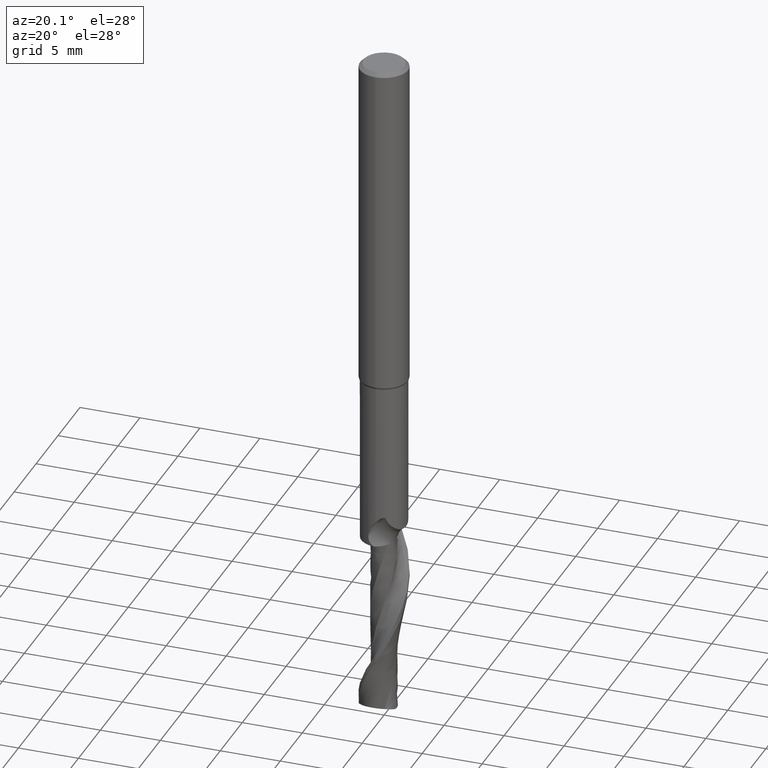
[diagram: clean part render]
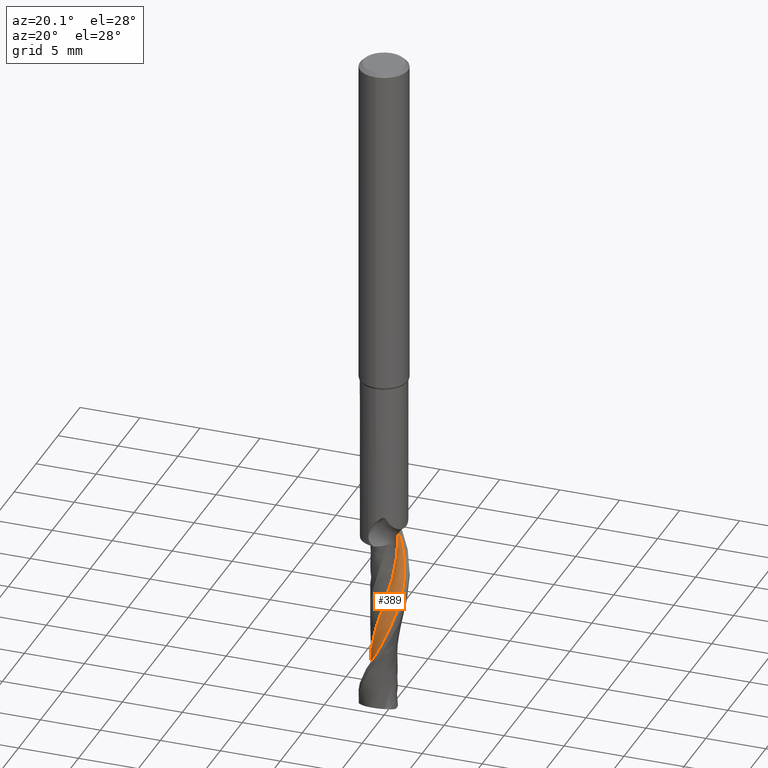
[diagram: same view with one face highlighted and labeled with its STEP entity id]
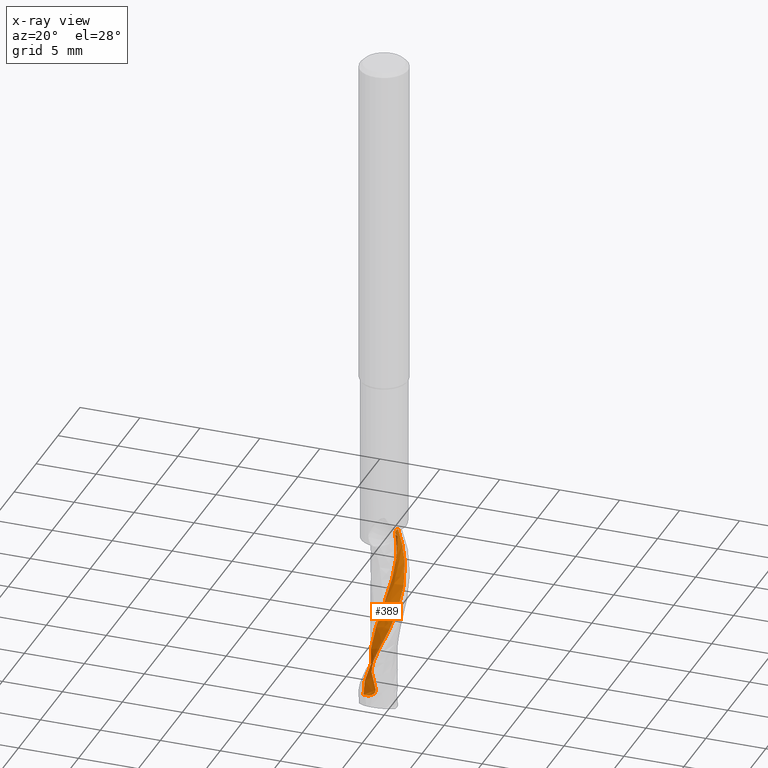
[diagram: x-ray of the same camera — body ghosted, the highlighted face saturated]
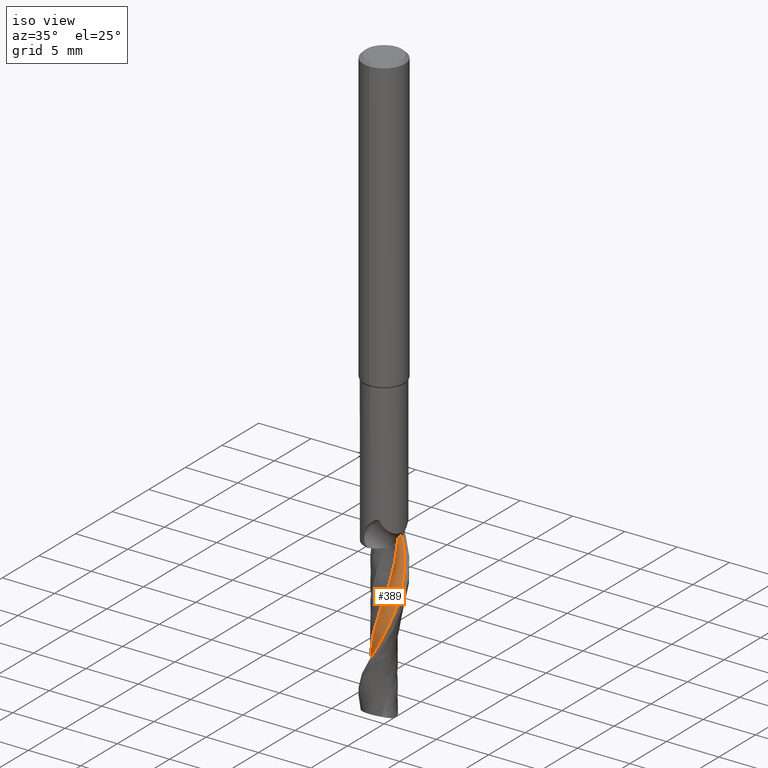
[diagram: same view with one face highlighted and labeled with its STEP entity id]
A machine part, auxiliary view. The second image highlights one B-rep face of the part: STEP entity #389.
The next image is the same camera in x-ray: the body ghosted, the highlighted face saturated — about 0% of this face is hidden behind the body in this view.
A second angle (iso view) of the same face is appended — the face is thin or edge-on in the first view.
In plain terms, the highlighted face is a freeform B-spline surface patch.
Its self-contained STEP definition (entity closure, byte-faithful):
#295=VERTEX_POINT('',#792);
#331=EDGE_CURVE('',#377,#705,#832,.T.);
#377=VERTEX_POINT('',#886);
#389=ADVANCED_FACE('',(#898),#899,.T.);
#493=EDGE_CURVE('',#295,#675,#1011,.T.);
#603=EDGE_CURVE('',#377,#295,#1132,.T.);
#667=EDGE_CURVE('',#675,#705,#1203,.T.);
#675=VERTEX_POINT('',#1211);
#705=VERTEX_POINT('',#1242);
#792=CARTESIAN_POINT('',(-0.908903919637681,0.59766019299976,-56.1065295811467));
#832=B_SPLINE_CURVE_WITH_KNOTS('',3,(#1902,#1903,#1904,#1905,#1906,#1907,#1908,#1909,#1910,#1911,#1912,#1913,#1914,#1915,#1916,#1917,#1918,#1919,#1920,#1921,#1922,#1923,#1924,#1925,#1926,#1927,#1928,#1929,#1930,#1931,#1932,#1933,#1934,#1935,#1936,#1937,#1938,#1939,#1940),.UNSPECIFIED.,.F.,.F.,(4,1,2,1,2,1,1,1,2,1,1,2,1,1,2,1,1,1,2,1,1,2,1,1,2,1,1,1,4),(0.0,0.719943288048691,1.43988657609738,2.15982986414607,2.87977315219476,3.59971644024345,4.31965972829214,5.03960301634083,5.75954630438952,6.47948959243822,7.55940452451125,8.63931945658429,9.71923438865732,10.7991493207304,11.519092608779,12.2390358968277,12.9589791848764,13.6789224729251,14.3988657609738,15.1188090490225,16.1987239810955,17.2786389131686,18.3585538452416,19.4384687773146,20.1584120653633,20.878355353412,21.5982986414607,22.3182419295094,23.0381852175581),.UNSPECIFIED.);
#886=CARTESIAN_POINT('',(-1.58362526969264,-0.374846924330382,-56.1648439006317));
#898=FACE_OUTER_BOUND('',#2132,.T.);
#899=B_SPLINE_SURFACE_WITH_KNOTS('',3,3,((#2133,#2134,#2135,#2136,#2137,#2138,#2139,#2140,#2141,#2142,#2143,#2144,#2145,#2146,#2147,#2148,#2149,#2150,#2151,#2152,#2153,#2154,#2155,#2156,#2157,#2158,#2159,#2160,#2161,#2162,#2163,#2164,#2165,#2166,#2167,#2168,#2169,#2170,#2171),(#2172,#2173,#2174,#2175,#2176,#2177,#2178,#2179,#2180,#2181,#2182,#2183,#2184,#2185,#2186,#2187,#2188,#2189,#2190,#2191,#2192,#2193,#2194,#2195,#2196,#2197,#2198,#2199,#2200,#2201,#2202,#2203,#2204,#2205,#2206,#2207,#2208,#2209,#2210),(#2211,#2212,#2213,#2214,#2215,#2216,#2217,#2218,#2219,#2220,#2221,#2222,#2223,#2224,#2225,#2226,#2227,#2228,#2229,#2230,#2231,#2232,#2233,#2234,#2235,#2236,#2237,#2238,#2239,#2240,#2241,#2242,#2243,#2244,#2245,#2246,#2247,#2248,#2249),(#2250,#2251,#2252,#2253,#2254,#2255,#2256,#2257,#2258,#2259,#2260,#2261,#2262,#2263,#2264,#2265,#2266,#2267,#2268,#2269,#2270,#2271,#2272,#2273,#2274,#2275,#2276,#2277,#2278,#2279,#2280,#2281,#2282,#2283,#2284,#2285,#2286,#2287,#2288),(#2289,#2290,#2291,#2292,#2293,#2294,#2295,#2296,#2297,#2298,#2299,#2300,#2301,#2302,#2303,#2304,#2305,#2306,#2307,#2308,#2309,#2310,#2311,#2312,#2313,#2314,#2315,#2316,#2317,#2318,#2319,#2320,#2321,#2322,#2323,#2324,#2325,#2326,#2327),(#2328,#2329,#2330,#2331,#2332,#2333,#2334,#2335,#2336,#2337,#2338,#2339,#2340,#2341,#2342,#2343,#2344,#2345,#2346,#2347,#2348,#2349,#2350,#2351,#2352,#2353,#2354,#2355,#2356,#2357,#2358,#2359,#2360,#2361,#2362,#2363,#2364,#2365,#2366)),.UNSPECIFIED.,.F.,.F.,.F.,(4,1,1,4),(4,1,2,1,2,1,1,1,2,1,1,2,1,1,2,1,1,1,2,1,1,2,1,1,2,1,1,1,4),(7.5969183366199E-016,0.543233729610051,1.0864674592201,1.44862327896014),(0.0,0.719943288048691,1.43988657609738,2.15982986414607,2.87977315219476,3.59971644024345,4.31965972829214,5.03960301634083,5.75954630438952,6.47948959243822,7.55940452451125,8.63931945658429,9.71923438865732,10.7991493207304,11.519092608779,12.2390358968277,12.9589791848764,13.6789224729251,14.3988657609738,15.1188090490225,16.1987239810955,17.2786389131686,18.3585538452416,19.4384687773146,20.1584120653633,20.878355353412,21.5982986414607,22.3182419295094,23.0381852175581),.UNSPECIFIED.);
#1011=B_SPLINE_CURVE_WITH_KNOTS('',3,(#2650,#2651,#2652,#2653,#2654,#2655,#2656,#2657,#2658,#2659,#2660,#2661,#2662,#2663,#2664,#2665,#2666,#2667,#2668,#2669,#2670,#2671,#2672,#2673,#2674,#2675,#2676,#2677,#2678,#2679,#2680,#2681,#2682,#2683,#2684,#2685,#2686,#2687),.UNSPECIFIED.,.F.,.F.,(4,1,2,1,2,1,1,2,1,1,1,2,1,1,2,1,1,2,1,1,1,2,1,1,2,1,1,4),(0.0,0.719943288048691,1.43988657609738,2.15982986414607,2.87977315219476,4.31965972829214,5.03960301634083,5.75954630438952,6.47948959243822,7.19943288048691,7.9193761685356,8.63931945658429,9.35926274463298,10.439177676706,11.519092608779,12.5990075408521,13.6789224729251,14.3988657609738,15.1188090490225,15.8387523370712,16.5586956251199,17.2786389131686,17.9985822012173,19.0784971332903,20.1584120653633,21.2383269974364,22.3182419295094,23.0381852175581),.UNSPECIFIED.);
#1132=B_SPLINE_CURVE_WITH_KNOTS('',3,(#3349,#3350,#3351,#3352,#3353,#3354,#3355,#3356,#3357,#3358,#3359,#3360),.UNSPECIFIED.,.F.,.F.,(4,2,2,2,2,4),(0.0,0.499683316893391,0.858895754889772,1.13816798124767,1.30108350655686,1.47044214756414),.UNSPECIFIED.);
#1203=B_SPLINE_CURVE_WITH_KNOTS('',3,(#3628,#3629,#3630,#3631,#3632,#3633,#3634,#3635,#3636,#3637),.UNSPECIFIED.,.F.,.F.,(4,2,2,2,4),(0.0,0.354202239212975,0.708401832477051,1.0127346982111,1.31706661633408),.UNSPECIFIED.);
#1211=CARTESIAN_POINT('',(1.02057109822842,0.37498551083274,-42.0));
#1242=CARTESIAN_POINT('',(0.615819999999758,1.50632507853999,-42.0));
#1902=CARTESIAN_POINT('',(-0.747092328724999,1.44495588057376,-61.0));
#1903=CARTESIAN_POINT('',(-0.796246303134718,1.42042654677383,-60.7604298059231));
#1904=CARTESIAN_POINT('',(-0.920772970265287,1.35179282809599,-60.2812326823049));
#1905=CARTESIAN_POINT('',(-1.09211030170688,1.21365126052608,-59.8020237989139));
#1906=CARTESIAN_POINT('',(-1.26858757552014,1.02665951043037,-59.3228870426175));
#1907=CARTESIAN_POINT('',(-1.41321849395133,0.830616107788733,-58.8437570278979));
#1908=CARTESIAN_POINT('',(-1.50810782905711,0.621072748624729,-58.3645965334912));
#1909=CARTESIAN_POINT('',(-1.58103380812738,0.401191363650075,-57.885416571483));
#1910=CARTESIAN_POINT('',(-1.62802076846532,0.182109549905961,-57.4062483025684));
#1911=CARTESIAN_POINT('',(-1.63201993209971,-0.140893227592457,-56.6874897740715));
#1912=CARTESIAN_POINT('',(-1.57214444608408,-0.462602209461609,-55.9687153765088));
#1913=CARTESIAN_POINT('',(-1.48425654061036,-0.677509828735228,-55.4895365534525));
#1914=CARTESIAN_POINT('',(-1.36782701478322,-0.889189188246011,-55.0103778434762));
#1915=CARTESIAN_POINT('',(-1.20061335990503,-1.12464512884396,-54.411447039356));
#1916=CARTESIAN_POINT('',(-0.871410185517297,-1.40270320762451,-53.4531318904487));
#1917=CARTESIAN_POINT('',(-0.560655131646842,-1.53815367976334,-52.7343502561839));
#1918=CARTESIAN_POINT('',(-0.209302529478902,-1.62351365242951,-52.0155971318769));
#1919=CARTESIAN_POINT('',(0.129967094913495,-1.64624073348596,-51.2968754438914));
#1920=CARTESIAN_POINT('',(0.55165769462008,-1.55005899100093,-50.338530367865));
#1921=CARTESIAN_POINT('',(0.807834106947866,-1.41748557808038,-49.7395533387149));
#1922=CARTESIAN_POINT('',(1.00741309359551,-1.28320680561679,-49.2603866143285));
#1923=CARTESIAN_POINT('',(1.18299083590437,-1.13359260236567,-48.7812344597973));
#1924=CARTESIAN_POINT('',(1.38411431839155,-0.876018067359553,-48.0624972939518));
#1925=CARTESIAN_POINT('',(1.53102032652717,-0.584036218984721,-47.3437338766151));
#1926=CARTESIAN_POINT('',(1.59105228736176,-0.361187833103304,-46.8645524297489));
#1927=CARTESIAN_POINT('',(1.62675673940694,-0.123185308646259,-46.3853856878334));
#1928=CARTESIAN_POINT('',(1.63679990212027,0.165131437228922,-45.7864459620998));
#1929=CARTESIAN_POINT('',(1.54354366578942,0.587228178589165,-44.8281239072086));
#1930=CARTESIAN_POINT('',(1.37798890574217,0.883896709952204,-44.1093442242543));
#1931=CARTESIAN_POINT('',(1.15040415179628,1.16453959055037,-43.3905952510516));
#1932=CARTESIAN_POINT('',(0.894952844044808,1.38769284759894,-42.6718757088148));
#1933=CARTESIAN_POINT('',(0.502366297550341,1.56672613140801,-41.7135273623549));
#1934=CARTESIAN_POINT('',(0.218170565463953,1.61689563071877,-41.1145459312599));
#1935=CARTESIAN_POINT('',(-0.0224640045556899,1.63127271316098,-40.6353753788304));
#1936=CARTESIAN_POINT('',(-0.253563104771752,1.61876718484443,-40.1562220912403));
#1937=CARTESIAN_POINT('',(-0.569987465960338,1.53567308716594,-39.4374911464761));
#1938=CARTESIAN_POINT('',(-0.862369583667473,1.39320788862434,-38.7187401590941));
#1939=CARTESIAN_POINT('',(-1.042990615447,1.2545070398402,-38.2395690145913));
#1940=CARTESIAN_POINT('',(-1.12813786723572,1.17246107348944,-37.9999904402932));
#2132=EDGE_LOOP('',(#4243,#4244,#4245,#4246));
#2133=CARTESIAN_POINT('',(0.37344938997299,1.01123810155244,-61.0));
#2134=CARTESIAN_POINT('',(0.340621468910452,1.02888930770785,-60.760506195822));
#2135=CARTESIAN_POINT('',(0.252167524206528,1.06605088915303,-60.2810865784436));
#2136=CARTESIAN_POINT('',(0.106589197238055,1.08872042268198,-59.8015942266927));
#2137=CARTESIAN_POINT('',(-0.0650041848484931,1.08885329747034,-59.3226830225724));
#2138=CARTESIAN_POINT('',(-0.226500323789809,1.07052014655177,-58.8438186207052));
#2139=CARTESIAN_POINT('',(-0.372479955374134,1.02276057701659,-58.3646983516169));
#2140=CARTESIAN_POINT('',(-0.513543325087514,0.959278985983354,-57.8854205056298));
#2141=CARTESIAN_POINT('',(-0.642818231459308,0.883993547261821,-57.4062397363885));
#2142=CARTESIAN_POINT('',(-0.80485185032448,0.741469046371074,-56.6874216366709));
#2143=CARTESIAN_POINT('',(-0.937352693485182,0.56753012673397,-55.9684755177516));
#2144=CARTESIAN_POINT('',(-1.0032554708562,0.427115210313284,-55.4892118325112));
#2145=CARTESIAN_POINT('',(-1.05384212440182,0.27398126509013,-55.0101121116069));
#2146=CARTESIAN_POINT('',(-1.09408943909093,0.0855066840085713,-54.4113806499296));
#2147=CARTESIAN_POINT('',(-1.08502572899996,-0.202185735673845,-53.4531975666378));
#2148=CARTESIAN_POINT('',(-1.01198779328069,-0.416731703791342,-52.7341898846561));
#2149=CARTESIAN_POINT('',(-0.894159458164772,-0.627396368183665,-52.0154154325055));
#2150=CARTESIAN_POINT('',(-0.752802123956714,-0.80485389618705,-51.2968981249069));
#2151=CARTESIAN_POINT('',(-0.516409689996644,-0.971172881616692,-50.3384709430145));
#2152=CARTESIAN_POINT('',(-0.335411111168309,-1.037364062432,-49.739361188337));
#2153=CARTESIAN_POINT('',(-0.179071419655521,-1.07404175911303,-49.2601951269456));
#2154=CARTESIAN_POINT('',(-0.0262641627716433,-1.09285700384931,-48.7811481183962));
#2155=CARTESIAN_POINT('',(0.191433377017853,-1.0770903260317,-48.062504526928));
#2156=CARTESIAN_POINT('',(0.401968268293313,-1.01901809790008,-47.3436463157433));
#2157=CARTESIAN_POINT('',(0.538768917989692,-0.947880774735778,-46.8643597523756));
#2158=CARTESIAN_POINT('',(0.671436705591479,-0.857260267887798,-46.3851933223269));
#2159=CARTESIAN_POINT('',(0.817724445113412,-0.732081530721032,-45.7863880707476));
#2160=CARTESIAN_POINT('',(0.985501531528441,-0.497084215847053,-44.8281486023193));
#2161=CARTESIAN_POINT('',(1.05743462063246,-0.281654999276865,-44.109157722847));
#2162=CARTESIAN_POINT('',(1.09137385684919,-0.0428425035843869,-43.3904182091845));
#2163=CARTESIAN_POINT('',(1.08657940344124,0.18342477993715,-42.6719196108891));
#2164=CARTESIAN_POINT('',(0.999924023748554,0.458454876862612,-41.7134661556681));
#2165=CARTESIAN_POINT('',(0.896188697959017,0.620993225410227,-41.1143193327943));
#2166=CARTESIAN_POINT('',(0.793900052563505,0.745229035216566,-40.6351205005247));
#2167=CARTESIAN_POINT('',(0.683396054737137,0.853155561063711,-40.1560621340111));
#2168=CARTESIAN_POINT('',(0.500446250367862,0.972610958536002,-39.4374621759184));
#2169=CARTESIAN_POINT('',(0.298853134910178,1.05376665213173,-38.7186920535485));
#2170=CARTESIAN_POINT('',(0.149027748889753,1.08026934509927,-38.2394750142498));
#2171=CARTESIAN_POINT('',(0.0702150484927037,1.08485319801104,-37.9999218751364));
#2172=CARTESIAN_POINT('',(0.21950679200564,0.954177923067244,-61.0));
#2173=CARTESIAN_POINT('',(0.188826825495382,0.966034305134786,-60.7604896038377));
#2174=CARTESIAN_POINT('',(0.106259242187838,0.989102969917229,-60.2811183123528));
#2175=CARTESIAN_POINT('',(-0.0273963990682428,0.992983005321426,-59.8016875299924));
#2176=CARTESIAN_POINT('',(-0.182548504950079,0.973523351261259,-59.3227273359215));
#2177=CARTESIAN_POINT('',(-0.326229865637921,0.938530167558432,-58.843805243199));
#2178=CARTESIAN_POINT('',(-0.452333996909476,0.878839015161968,-58.3646762356072));
#2179=CARTESIAN_POINT('',(-0.572264699665102,0.805520176848746,-57.8854196521773));
#2180=CARTESIAN_POINT('',(-0.680099803000393,0.722968432346124,-57.4062415969273));
#2181=CARTESIAN_POINT('',(-0.809620753575754,0.576281214598639,-56.6874364370274));
#2182=CARTESIAN_POINT('',(-0.909055572289094,0.404636048830124,-55.9685276143923));
#2183=CARTESIAN_POINT('',(-0.952475269733954,0.270520800821138,-55.48928236282));
#2184=CARTESIAN_POINT('',(-0.980669115670334,0.126515918825793,-55.0101698280311));
#2185=CARTESIAN_POINT('',(-0.995431430656809,-0.0479845154205089,-54.4113950708418));
#2186=CARTESIAN_POINT('',(-0.954476817217017,-0.305707498585562,-53.4531832970002));
#2187=CARTESIAN_POINT('',(-0.864271684213888,-0.49063737231312,-52.7342247294831));
#2188=CARTESIAN_POINT('',(-0.733888745592001,-0.667336480993022,-52.0154548856993));
#2189=CARTESIAN_POINT('',(-0.586285365047798,-0.811041108792818,-51.2968932010191));
#2190=CARTESIAN_POINT('',(-0.354694678716965,-0.933719962042272,-50.338483849909));
#2191=CARTESIAN_POINT('',(-0.1839973121607,-0.972763396074826,-49.739402920992));
#2192=CARTESIAN_POINT('',(-0.0387098467040941,-0.988030755518673,-49.2602367206549));
#2193=CARTESIAN_POINT('',(0.10117918466766,-0.987547397187072,-48.7811668671511));
#2194=CARTESIAN_POINT('',(0.295288738519328,-0.94853456709241,-48.0625029529873));
#2195=CARTESIAN_POINT('',(0.478135101537594,-0.872284549304574,-47.3436653388979));
#2196=CARTESIAN_POINT('',(0.593344241778705,-0.792571252456646,-46.8644015990329));
#2197=CARTESIAN_POINT('',(0.702745722056559,-0.695646103996787,-46.3852351072305));
#2198=CARTESIAN_POINT('',(0.82032065865424,-0.566106531353579,-45.7864006431642));
#2199=CARTESIAN_POINT('',(0.944444712753115,-0.335593771924023,-44.8281432491588));
#2200=CARTESIAN_POINT('',(0.984718339240577,-0.133351198992534,-44.109198222695));
#2201=CARTESIAN_POINT('',(0.988106095778795,0.08606545691102,-43.3904566711616));
#2202=CARTESIAN_POINT('',(0.957941292192504,0.289321127019026,-42.6719100696357));
#2203=CARTESIAN_POINT('',(0.848667813963274,0.52682976682062,-41.7134794616861));
#2204=CARTESIAN_POINT('',(0.736637324582243,0.661530489902766,-41.1143685336419));
#2205=CARTESIAN_POINT('',(0.630136261962483,0.761998345883059,-40.6351758767383));
#2206=CARTESIAN_POINT('',(0.518193711054691,0.846681898414576,-40.1560968694962));
#2207=CARTESIAN_POINT('',(0.33992167446125,0.933324376373465,-39.4374684660817));
#2208=CARTESIAN_POINT('',(0.149282452708054,0.98337518614454,-38.7187025077034));
#2209=CARTESIAN_POINT('',(0.0112619454598285,0.990182868950036,-38.2394954181632));
#2210=CARTESIAN_POINT('',(-0.0603561044933759,0.985327516783072,-37.9999367675356));
#2211=CARTESIAN_POINT('',(-0.119897137992059,0.925862601069439,-61.0));
#2212=CARTESIAN_POINT('',(-0.149511134167827,0.92494285040592,-60.7604581188563));
#2213=CARTESIAN_POINT('',(-0.228162227789318,0.916571276669571,-60.2811785309375));
#2214=CARTESIAN_POINT('',(-0.34845355794874,0.876264685437648,-59.8018645834127));
#2215=CARTESIAN_POINT('',(-0.481658621156065,0.808497774409972,-59.3228114255068));
#2216=CARTESIAN_POINT('',(-0.599015439113361,0.730292822001319,-58.8437798567438));
#2217=CARTESIAN_POINT('',(-0.692044245721286,0.635691715240906,-58.3646342702409));
#2218=CARTESIAN_POINT('',(-0.775221261172602,0.530948215226882,-57.885418030417));
#2219=CARTESIAN_POINT('',(-0.844257460272377,0.421938490134961,-57.4062451265279));
#2220=CARTESIAN_POINT('',(-0.911123828197631,0.248830271159069,-56.6874645184626));
#2221=CARTESIAN_POINT('',(-0.943203433566011,0.0633584157486544,-55.9686264759561));
#2222=CARTESIAN_POINT('',(-0.938186136888985,-0.0706858737670724,-55.4894162014649));
#2223=CARTESIAN_POINT('',(-0.916548028084716,-0.208915359066519,-55.0102793519214));
#2224=CARTESIAN_POINT('',(-0.872601411156163,-0.369679792973807,-54.4114224330715));
#2225=CARTESIAN_POINT('',(-0.751230680132039,-0.585268971605013,-53.4531562358245));
#2226=CARTESIAN_POINT('',(-0.610229554149452,-0.720573303789749,-52.7342908111901));
#2227=CARTESIAN_POINT('',(-0.435846596073741,-0.836386851275749,-52.0155297928055));
#2228=CARTESIAN_POINT('',(-0.256968422513596,-0.916118403460448,-51.296883849474));
#2229=CARTESIAN_POINT('',(-0.0106755058658334,-0.948914680701735,-50.338508341383));
#2230=CARTESIAN_POINT('',(0.154551531780161,-0.927971423101682,-49.7394821225606));
#2231=CARTESIAN_POINT('',(0.28967339046149,-0.89429939175669,-49.2603156402129));
#2232=CARTESIAN_POINT('',(0.414492096346523,-0.848057721098728,-48.7812024615101));
#2233=CARTESIAN_POINT('',(0.574407121256027,-0.749457228609819,-48.0624999773147));
#2234=CARTESIAN_POINT('',(0.712042604220752,-0.621464905485544,-47.343701421153));
#2235=CARTESIAN_POINT('',(0.78887887016721,-0.512591961815149,-46.8644810166125));
#2236=CARTESIAN_POINT('',(0.855295987511694,-0.390113633762936,-46.3853143899081));
#2237=CARTESIAN_POINT('',(0.917920172958024,-0.235872831405411,-45.7864245036647));
#2238=CARTESIAN_POINT('',(0.952312477055746,0.00998320733938579,-44.8281330579276));
#2239=CARTESIAN_POINT('',(0.921976798398271,0.203501320813948,-44.109275097784));
#2240=CARTESIAN_POINT('',(0.853512241241937,0.401168349621063,-43.3905296350087));
#2241=CARTESIAN_POINT('',(0.759835759942193,0.572564002090815,-42.6718919795528));
#2242=CARTESIAN_POINT('',(0.584471845517207,0.747684217839435,-41.7135046655042));
#2243=CARTESIAN_POINT('',(0.440365157521247,0.831373674100667,-41.1144619596787));
#2244=CARTESIAN_POINT('',(0.312212650955468,0.886689790299776,-40.6352808974016));
#2245=CARTESIAN_POINT('',(0.184454146057561,0.925726263828494,-40.1561628120879));
#2246=CARTESIAN_POINT('',(-0.00273951332785316,0.944191953698086,-39.4374804146183));
#2247=CARTESIAN_POINT('',(-0.188807353718388,0.925984850248662,-38.7187223275337));
#2248=CARTESIAN_POINT('',(-0.314203123992919,0.886861937467695,-38.2395341787266));
#2249=CARTESIAN_POINT('',(-0.376699157469196,0.859137750189929,-37.9999650275216));
#2250=CARTESIAN_POINT('',(-0.526758096265482,1.12752226728368,-61.0));
#2251=CARTESIAN_POINT('',(-0.563963021501498,1.11128704051877,-60.7604326915668));
#2252=CARTESIAN_POINT('',(-0.65981835277231,1.06433471036931,-60.281227163547));
#2253=CARTESIAN_POINT('',(-0.795318691561385,0.964387660594953,-59.8020075710951));
#2254=CARTESIAN_POINT('',(-0.936778368230507,0.826360986615412,-59.3228793364077));
#2255=CARTESIAN_POINT('',(-1.05388137336211,0.680693741292185,-58.8437593540738));
#2256=CARTESIAN_POINT('',(-1.13322911952572,0.52345093119129,-58.3646003800111));
#2257=CARTESIAN_POINT('',(-1.1961245166444,0.357507537676476,-57.8854167197687));
#2258=CARTESIAN_POINT('',(-1.23912115167191,0.191556184628133,-57.4062479792681));
#2259=CARTESIAN_POINT('',(-1.25269740993904,-0.0548968015843638,-56.6874871999004));
#2260=CARTESIAN_POINT('',(-1.21744025176224,-0.302580767713764,-55.9687063168944));
#2261=CARTESIAN_POINT('',(-1.15709581632719,-0.469935007950372,-55.4895242846668));
#2262=CARTESIAN_POINT('',(-1.07460611571767,-0.635925933051496,-55.0103678078311));
#2263=CARTESIAN_POINT('',(-0.954189360369724,-0.821486345815514,-54.4114445299073));
#2264=CARTESIAN_POINT('',(-0.711998855451049,-1.04442705512814,-53.4531343676456));
#2265=CARTESIAN_POINT('',(-0.47881705582695,-1.15811388674963,-52.7343442026554));
#2266=CARTESIAN_POINT('',(-0.212246953989027,-1.23477461965755,-52.0155902636351));
#2267=CARTESIAN_POINT('',(0.0464242492579224,-1.26305738605389,-51.2968763041193));
#2268=CARTESIAN_POINT('',(0.371458116045678,-1.20341133978695,-50.3385281186263));
#2269=CARTESIAN_POINT('',(0.571795115453962,-1.11023781346266,-49.739546085149));
#2270=CARTESIAN_POINT('',(0.729052834785515,-1.01370635616193,-49.260379375932));
#2271=CARTESIAN_POINT('',(0.868216997082499,-0.904854470682424,-48.781231200053));
#2272=CARTESIAN_POINT('',(1.03018569729346,-0.714677547670778,-48.0624975672448));
#2273=CARTESIAN_POINT('',(1.15189421831864,-0.496467910291714,-47.3437305687171));
#2274=CARTESIAN_POINT('',(1.20503957240311,-0.327863780021801,-46.8645451531985));
#2275=CARTESIAN_POINT('',(1.240016764877,-0.146591093917842,-46.3853784193402));
#2276=CARTESIAN_POINT('',(1.25695720101905,0.0737210237337317,-45.786443777454));
#2277=CARTESIAN_POINT('',(1.19952122502243,0.39894562679417,-44.82812484403));
#2278=CARTESIAN_POINT('',(1.08258903282393,0.631182851871864,-44.1093371726766));
#2279=CARTESIAN_POINT('',(0.917130259280899,0.853561031692009,-43.3905885697319));
#2280=CARTESIAN_POINT('',(0.729008434924741,1.03237967780747,-42.6718773651856));
#2281=CARTESIAN_POINT('',(0.435210894976785,1.1818603780183,-41.7135250511221));
#2282=CARTESIAN_POINT('',(0.219332034530048,1.22944606827053,-41.114537372054));
#2283=CARTESIAN_POINT('',(0.0353438605291465,1.24815903442812,-40.6353657501933));
#2284=CARTESIAN_POINT('',(-0.141932072467344,1.24600424977509,-40.1562160490522));
#2285=CARTESIAN_POINT('',(-0.386306344125052,1.19281415514283,-39.4374900516506));
#2286=CARTESIAN_POINT('',(-0.614211969042783,1.09355703837187,-38.7187383437808));
#2287=CARTESIAN_POINT('',(-0.756862974317408,0.993313212512639,-38.2395654601133));
#2288=CARTESIAN_POINT('',(-0.824713644606052,0.933201770733888,-37.9999878502376));
#2289=CARTESIAN_POINT('',(-0.696818776938434,1.34773340965277,-61.0));
#2290=CARTESIAN_POINT('',(-0.742313033287322,1.32509654646708,-60.7604291683095));
#2291=CARTESIAN_POINT('',(-0.857993206197305,1.26150369949117,-60.2812339015988));
#2292=CARTESIAN_POINT('',(-1.01786717157193,1.13277905258495,-59.802027384901));
#2293=CARTESIAN_POINT('',(-1.18271717030662,0.958259446280901,-59.322888745118));
#2294=CARTESIAN_POINT('',(-1.31777288995135,0.775358557179901,-58.843756514307));
#2295=CARTESIAN_POINT('',(-1.40638334565515,0.579936791639579,-58.3645956830249));
#2296=CARTESIAN_POINT('',(-1.47451847330514,0.374838554532581,-57.8854165392527));
#2297=CARTESIAN_POINT('',(-1.51844071777028,0.170534071241266,-57.4062483724594));
#2298=CARTESIAN_POINT('',(-1.52232913941508,-0.130616941376727,-56.6874903429921));
#2299=CARTESIAN_POINT('',(-1.46666007908714,-0.430632996719866,-55.9687173794609));
#2300=CARTESIAN_POINT('',(-1.38476874546488,-0.631176038997379,-55.4895392646719));
#2301=CARTESIAN_POINT('',(-1.27620064121649,-0.82878062491612,-55.0103800606664));
#2302=CARTESIAN_POINT('',(-1.12030578144735,-1.04850969138953,-54.4114475931022));
#2303=CARTESIAN_POINT('',(-0.813526187079485,-1.30790278670244,-53.4531313443032));
#2304=CARTESIAN_POINT('',(-0.523763691572097,-1.43440206078702,-52.7343515911574));
#2305=CARTESIAN_POINT('',(-0.195906580625916,-1.51421660571778,-52.0155986521114));
#2306=CARTESIAN_POINT('',(0.120521230647231,-1.53555528036871,-51.2968752513628));
#2307=CARTESIAN_POINT('',(0.513726063138652,-1.44609928474509,-50.3385308655065));
#2308=CARTESIAN_POINT('',(0.752776714813948,-1.32254951732465,-49.7395549397939));
#2309=CARTESIAN_POINT('',(0.939087393648781,-1.19732481411164,-49.2603882154076));
#2310=CARTESIAN_POINT('',(1.10294587065661,-1.0578276783825,-48.7812351807925));
#2311=CARTESIAN_POINT('',(1.2906056195378,-0.817751261908387,-48.0624972332165));
#2312=CARTESIAN_POINT('',(1.42773499902083,-0.54556869655326,-47.3437346064209));
#2313=CARTESIAN_POINT('',(1.48384798248622,-0.337704514318177,-46.8645540366929));
#2314=CARTESIAN_POINT('',(1.51727256123524,-0.115609703602967,-46.3853872947773));
#2315=CARTESIAN_POINT('',(1.52676491637982,0.153353498733424,-45.7864464419701));
#2316=CARTESIAN_POINT('',(1.44002559626139,0.546930146332645,-44.8281236971722));
#2317=CARTESIAN_POINT('',(1.28577059856784,0.823722184444244,-44.1093457877878));
#2318=CARTESIAN_POINT('',(1.07350408189385,1.08572659873977,-43.3905967219546));
#2319=CARTESIAN_POINT('',(0.835342237395421,1.29396370095459,-42.671875346445));
#2320=CARTESIAN_POINT('',(0.46942236673453,1.46108179057734,-41.7135278748485));
#2321=CARTESIAN_POINT('',(0.20432099755689,1.50802600537033,-41.1145478171519));
#2322=CARTESIAN_POINT('',(-0.0202440511318887,1.52154840562117,-40.6353775117371));
#2323=CARTESIAN_POINT('',(-0.235846551139747,1.50998094804403,-40.1562234241975));
#2324=CARTESIAN_POINT('',(-0.530939317148318,1.43265017931029,-39.4374913891029));
#2325=CARTESIAN_POINT('',(-0.803630352593199,1.29996226632859,-38.7187405581403));
#2326=CARTESIAN_POINT('',(-0.972179288191561,1.17067402782384,-38.2395698030291));
#2327=CARTESIAN_POINT('',(-1.05166573424506,1.09415620942136,-37.9999910125931));
#2328=CARTESIAN_POINT('',(-0.747092328724999,1.44495588057376,-61.0));
#2329=CARTESIAN_POINT('',(-0.796246303134718,1.42042654677383,-60.7604298059231));
#2330=CARTESIAN_POINT('',(-0.920772970265287,1.35179282809599,-60.2812326823049));
#2331=CARTESIAN_POINT('',(-1.09211030170688,1.21365126052608,-59.8020237989139));
#2332=CARTESIAN_POINT('',(-1.26858757552014,1.02665951043037,-59.3228870426175));
#2333=CARTESIAN_POINT('',(-1.41321849395133,0.830616107788733,-58.8437570278979));
#2334=CARTESIAN_POINT('',(-1.50810782905711,0.621072748624729,-58.3645965334912));
#2335=CARTESIAN_POINT('',(-1.58103380812738,0.401191363650075,-57.885416571483));
#2336=CARTESIAN_POINT('',(-1.62802076846532,0.182109549905961,-57.4062483025684));
#2337=CARTESIAN_POINT('',(-1.63201993209971,-0.140893227592457,-56.6874897740715));
#2338=CARTESIAN_POINT('',(-1.57214444608408,-0.462602209461609,-55.9687153765088));
#2339=CARTESIAN_POINT('',(-1.48425654061036,-0.677509828735228,-55.4895365534525));
#2340=CARTESIAN_POINT('',(-1.36782701478322,-0.889189188246011,-55.0103778434762));
#2341=CARTESIAN_POINT('',(-1.20061335990503,-1.12464512884396,-54.411447039356));
#2342=CARTESIAN_POINT('',(-0.871410185517297,-1.40270320762451,-53.4531318904487));
#2343=CARTESIAN_POINT('',(-0.560655131646842,-1.53815367976334,-52.7343502561839));
#2344=CARTESIAN_POINT('',(-0.209302529478902,-1.62351365242951,-52.0155971318769));
#2345=CARTESIAN_POINT('',(0.129967094913495,-1.64624073348596,-51.2968754438914));
#2346=CARTESIAN_POINT('',(0.55165769462008,-1.55005899100093,-50.338530367865));
#2347=CARTESIAN_POINT('',(0.807834106947866,-1.41748557808038,-49.7395533387149));
#2348=CARTESIAN_POINT('',(1.00741309359551,-1.28320680561679,-49.2603866143285));
#2349=CARTESIAN_POINT('',(1.18299083590437,-1.13359260236567,-48.7812344597973));
#2350=CARTESIAN_POINT('',(1.38411431839155,-0.876018067359553,-48.0624972939518));
#2351=CARTESIAN_POINT('',(1.53102032652717,-0.584036218984721,-47.3437338766151));
#2352=CARTESIAN_POINT('',(1.59105228736176,-0.361187833103304,-46.8645524297489));
#2353=CARTESIAN_POINT('',(1.62675673940694,-0.123185308646259,-46.3853856878334));
#2354=CARTESIAN_POINT('',(1.63679990212027,0.165131437228922,-45.7864459620998));
#2355=CARTESIAN_POINT('',(1.54354366578942,0.587228178589165,-44.8281239072086));
#2356=CARTESIAN_POINT('',(1.37798890574217,0.883896709952204,-44.1093442242543));
#2357=CARTESIAN_POINT('',(1.15040415179628,1.16453959055037,-43.3905952510516));
#2358=CARTESIAN_POINT('',(0.894952844044808,1.38769284759894,-42.6718757088148));
#2359=CARTESIAN_POINT('',(0.502366297550341,1.56672613140801,-41.7135273623549));
#2360=CARTESIAN_POINT('',(0.218170565463953,1.61689563071877,-41.1145459312599));
#2361=CARTESIAN_POINT('',(-0.0224640045556899,1.63127271316098,-40.6353753788304));
#2362=CARTESIAN_POINT('',(-0.253563104771752,1.61876718484443,-40.1562220912403));
#2363=CARTESIAN_POINT('',(-0.569987465960338,1.53567308716594,-39.4374911464761));
#2364=CARTESIAN_POINT('',(-0.862369583667473,1.39320788862434,-38.7187401590941));
#2365=CARTESIAN_POINT('',(-1.042990615447,1.2545070398402,-38.2395690145913));
#2366=CARTESIAN_POINT('',(-1.12813786723572,1.17246107348944,-37.9999904402932));
#2650=CARTESIAN_POINT('',(0.37344939000775,1.01123810145868,-61.0));
#2651=CARTESIAN_POINT('',(0.340621468948526,1.0288893076158,-60.760506195822));
#2652=CARTESIAN_POINT('',(0.252167524253353,1.06605088906382,-60.2810865784436));
#2653=CARTESIAN_POINT('',(0.106589197296684,1.08872042260066,-59.8015942266927));
#2654=CARTESIAN_POINT('',(-0.0650041847785528,1.08885329739847,-59.3226830225724));
#2655=CARTESIAN_POINT('',(-0.226500323709248,1.07052014649113,-58.8438186207057));
#2656=CARTESIAN_POINT('',(-0.372479955286486,1.02276057696804,-58.3646983516158));
#2657=CARTESIAN_POINT('',(-0.584075009847519,0.927538190437248,-57.6457815826385));
#2658=CARTESIAN_POINT('',(-0.760629699724347,0.799139785852243,-56.9270810511117));
#2659=CARTESIAN_POINT('',(-0.93735269338603,0.567530126751227,-55.9684755177516));
#2660=CARTESIAN_POINT('',(-1.00325547076065,0.427115210344167,-55.4892118325112));
#2661=CARTESIAN_POINT('',(-1.05384212431218,0.273981265134756,-55.0101121116069));
#2662=CARTESIAN_POINT('',(-1.08613274959025,0.123190376706075,-54.5311239004831));
#2663=CARTESIAN_POINT('',(-1.08981111915252,-0.0947393977100193,-53.8125334274262));
#2664=CARTESIAN_POINT('',(-1.05092195248792,-0.309226318173443,-53.0936912079671));
#2665=CARTESIAN_POINT('',(-0.992349737386192,-0.45184248109855,-52.614394142631));
#2666=CARTESIAN_POINT('',(-0.91379751398994,-0.592285590688859,-52.1352111745306));
#2667=CARTESIAN_POINT('',(-0.801931091684408,-0.7494010170831,-51.5363916173422));
#2668=CARTESIAN_POINT('',(-0.582507108376933,-0.937503734222247,-50.5781463025606));
#2669=CARTESIAN_POINT('',(-0.374496034082806,-1.02819463816704,-49.8591527036784));
#2670=CARTESIAN_POINT('',(-0.13998649683277,-1.08321118320028,-49.1404036116041));
#2671=CARTESIAN_POINT('',(0.0858021659181551,-1.09864250942973,-48.4218996440312));
#2672=CARTESIAN_POINT('',(0.367723666850924,-1.03670024723659,-47.4634716578245));
#2673=CARTESIAN_POINT('',(0.538768917895585,-0.947880774702981,-46.8643597523756));
#2674=CARTESIAN_POINT('',(0.671436705492547,-0.857260267868293,-46.3851933223269));
#2675=CARTESIAN_POINT('',(0.788543334537318,-0.75716303495586,-45.9061461544446));
#2676=CARTESIAN_POINT('',(0.923954984757354,-0.585739752094358,-45.1875037938084));
#2677=CARTESIAN_POINT('',(1.02326542115862,-0.390977002860704,-44.4686493281653));
#2678=CARTESIAN_POINT('',(1.0630911599136,-0.24185291670867,-43.9893678039033));
#2679=CARTESIAN_POINT('',(1.08571731739922,-0.082644586259782,-43.5102081281282));
#2680=CARTESIAN_POINT('',(1.0919902280896,0.109767951772535,-42.911408948602));
#2681=CARTESIAN_POINT('',(1.03193434278528,0.391645075350521,-41.9531541895368));
#2682=CARTESIAN_POINT('',(0.921760859279425,0.589934272862351,-41.2341190408617));
#2683=CARTESIAN_POINT('',(0.768327891208202,0.776287987567511,-40.5153207924573));
#2684=CARTESIAN_POINT('',(0.597370918034111,0.925896733759994,-39.7968168825111));
#2685=CARTESIAN_POINT('',(0.336280156353586,1.04704142680787,-38.8384998531331));
#2686=CARTESIAN_POINT('',(0.149027748944477,1.08026934501549,-38.2394750142413));
#2687=CARTESIAN_POINT('',(0.0702150485533287,1.08485319793152,-37.9999218751364));
#3349=CARTESIAN_POINT('',(-1.58362526969192,-0.374846924329129,-56.1648439006348));
#3350=CARTESIAN_POINT('',(-1.44159692177681,-0.311695605485115,-56.2246975657342));
#3351=CARTESIAN_POINT('',(-1.31030176649712,-0.227953482385513,-56.2671048477271));
#3352=CARTESIAN_POINT('',(-1.12150511629932,-0.0576857148242159,-56.3026846634394));
#3353=CARTESIAN_POINT('',(-1.05031456089267,0.0244796288513713,-56.3069490552122));
#3354=CARTESIAN_POINT('',(-0.953264384001713,0.186834693460935,-56.2871111408035));
#3355=CARTESIAN_POINT('',(-0.921950514364681,0.261636439614631,-56.2692883633188));
#3356=CARTESIAN_POINT('',(-0.895250872070936,0.382548976675786,-56.2249810587279));
#3357=CARTESIAN_POINT('',(-0.890567681734377,0.426607441767434,-56.2055667413813));
#3358=CARTESIAN_POINT('',(-0.89160234552999,0.514376726454975,-56.1601756205083));
#3359=CARTESIAN_POINT('',(-0.897727841732736,0.557200768672309,-56.1343865105693));
#3360=CARTESIAN_POINT('',(-0.908903919744015,0.597660192972514,-56.1065295810949));
#3628=CARTESIAN_POINT('',(1.02057109827662,0.374985510920355,-42.0));
#3629=CARTESIAN_POINT('',(0.917123602516665,0.431893591631879,-42.0));
#3630=CARTESIAN_POINT('',(0.825780384750063,0.508463281515878,-42.0));
#3631=CARTESIAN_POINT('',(0.677586612185177,0.692305162227495,-42.0));
#3632=CARTESIAN_POINT('',(0.622152445433718,0.797819706453696,-42.0));
#3633=CARTESIAN_POINT('',(0.559588264431986,1.00822570129094,-42.0));
#3634=CARTESIAN_POINT('',(0.547197879493041,1.10962881819857,-42.0));
#3635=CARTESIAN_POINT('',(0.556497970772291,1.31230367566818,-42.0));
#3636=CARTESIAN_POINT('',(0.578122736410856,1.41214558157107,-42.0));
#3637=CARTESIAN_POINT('',(0.615819999999773,1.50632507853998,-42.0));
#4243=ORIENTED_EDGE('',*,*,#603,.F.);
#4244=ORIENTED_EDGE('',*,*,#331,.T.);
#4245=ORIENTED_EDGE('',*,*,#667,.F.);
#4246=ORIENTED_EDGE('',*,*,#493,.F.);